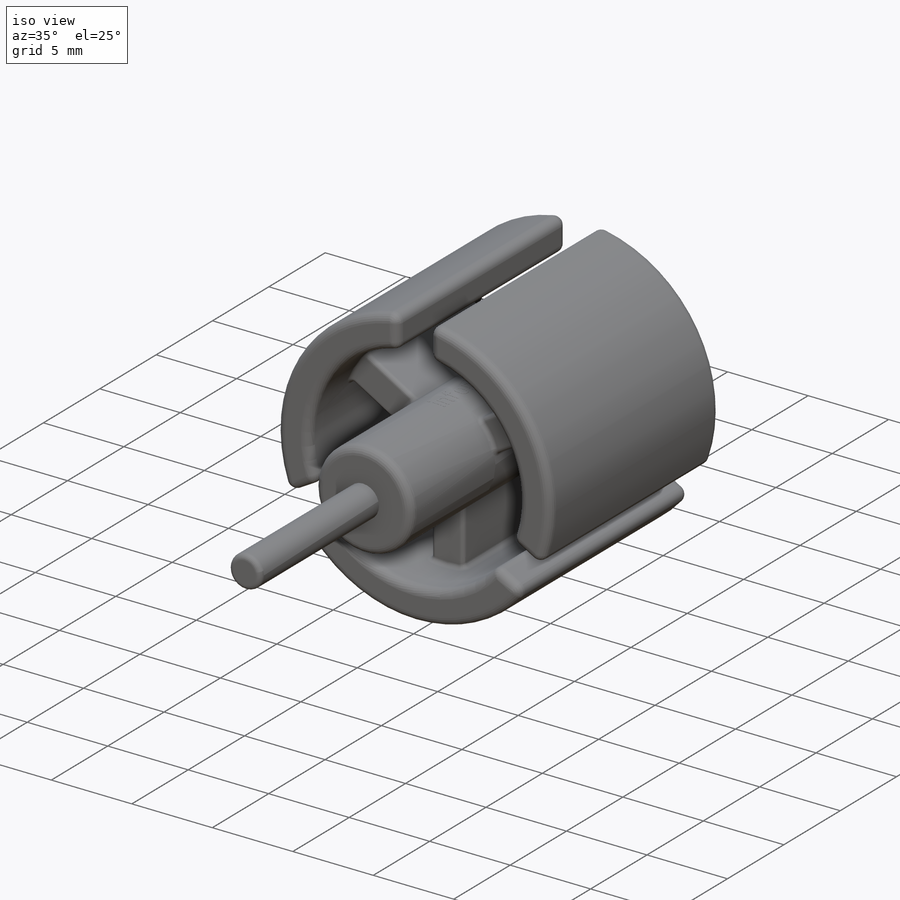
[diagram: iso view]
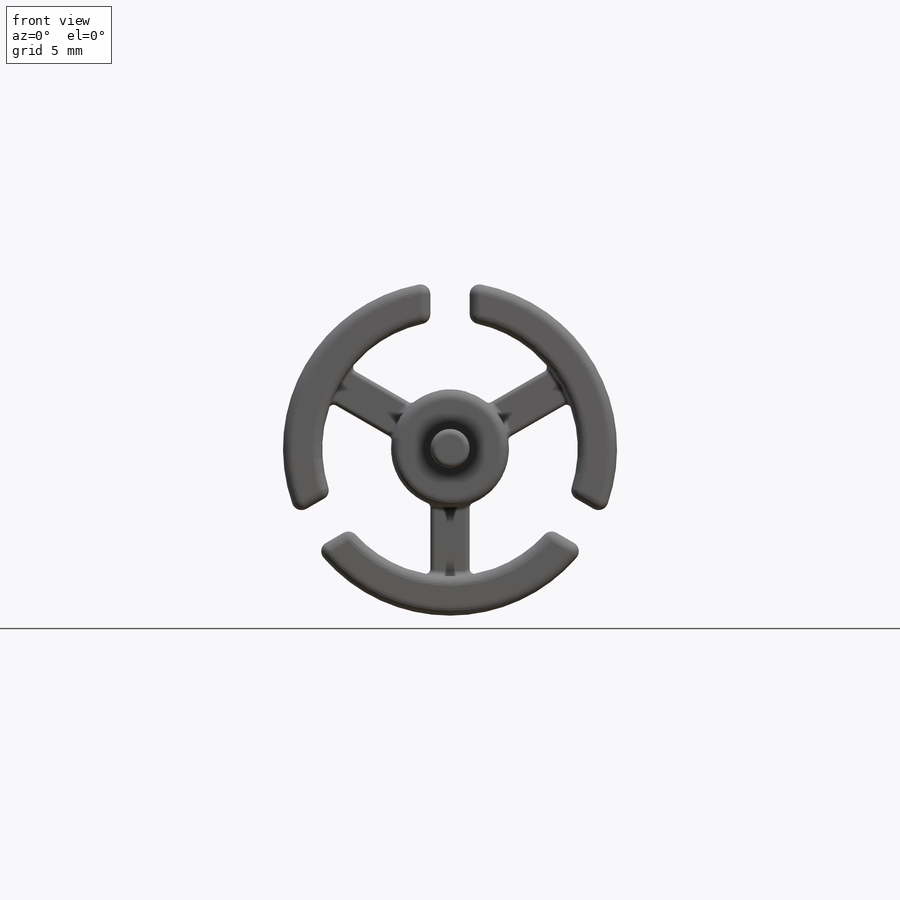
[diagram: front view]
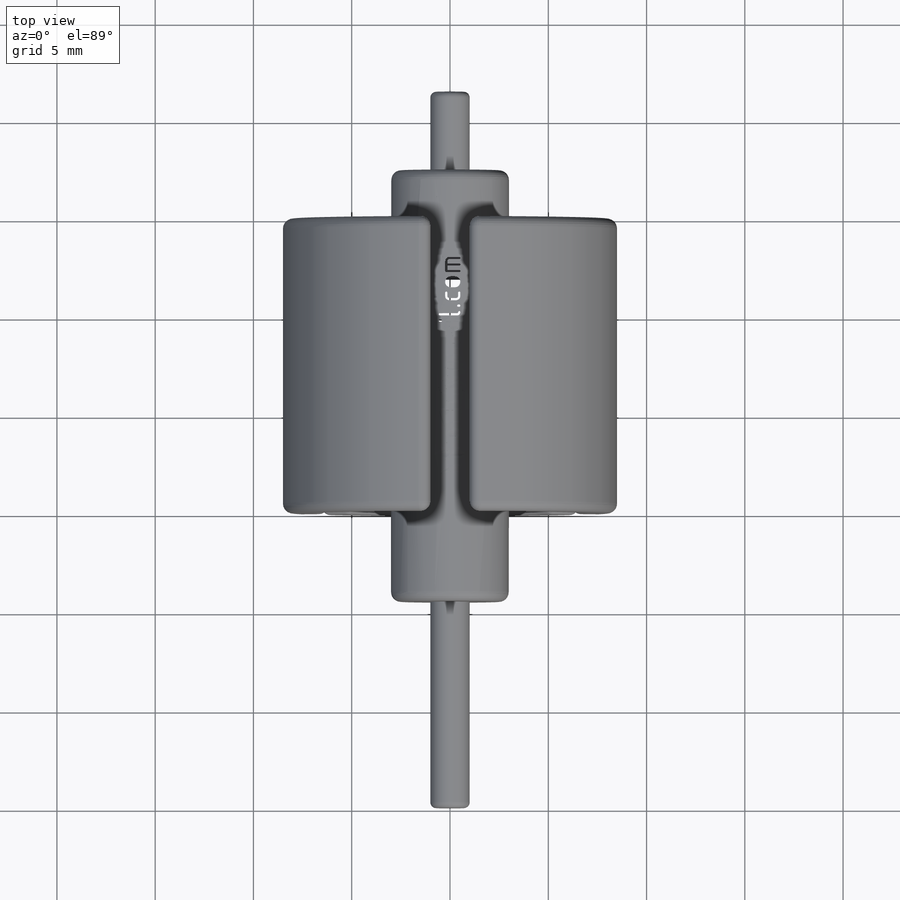
[diagram: top view]
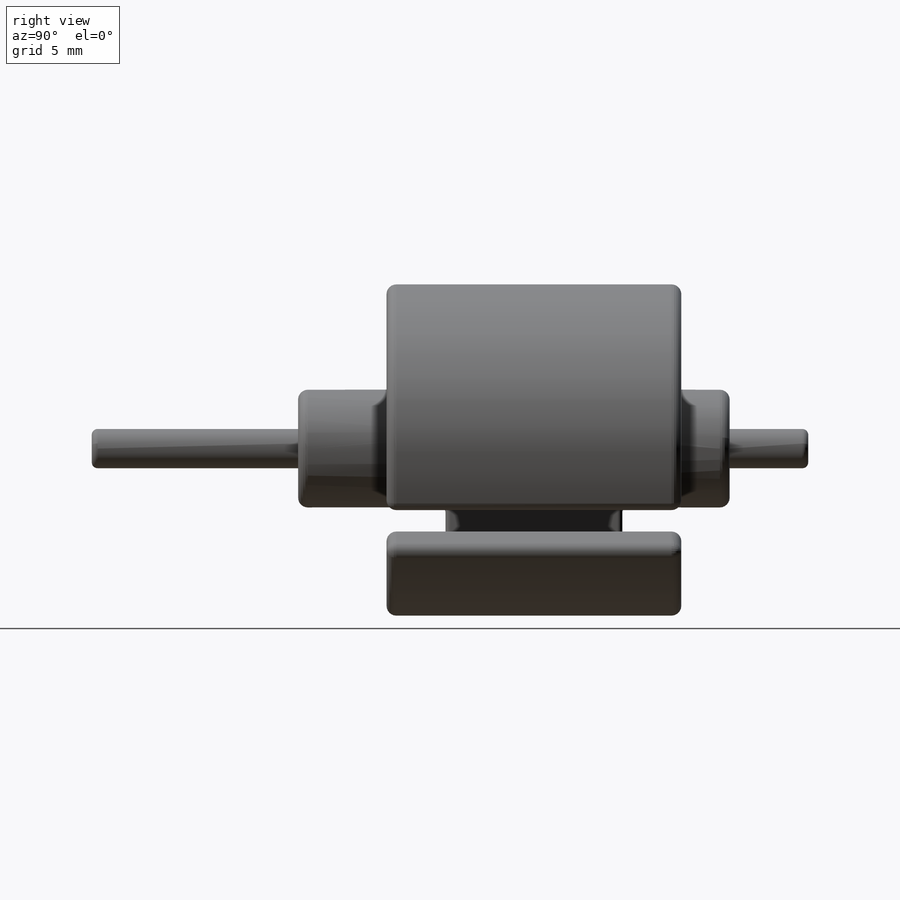
[diagram: right view]
SOLIDWORKS PART (.sldprt)
format: sldprt  version: not decoded by parser v0  size: 1,173,504 bytes
history: native  units: mm
features: sketch x5, plane x4, fillet x4, extrude x2, cut_extrude x2, material x1, revolve x1, pattern_circular x1, mirror x1 (+10 scaffold rows collapsed)
feature tree (31):
  scaffold x10  (default folders/planes/origin — collapsed)
  material  "AISI 1020"
  plane  "Frontal"
  plane  "Superior"
  plane  "Direito"
  sketch  "Sketch1"  dims[D1=2.0mm]
  extrude  "Extrude1"  Depth=36.46mm
  sketch  "Sketch2"  dims[D1=10.5mm D2=17.0mm D3=6.0mm D4=4.5mm D5=21.96mm D6=15.0mm D7=15.0mm]
  revolve  "Revolve1"  Angle=360deg
  fillet  "Fillet1"  Radius=0.5mm
  sketch  "Sketch3"  dims[c1.D5=22.0mm c1.D6=13.0mm c1.D1=~11.264026mm c2.D1=120.0deg c2.D2=5.0mm c3.D2=60.0deg c3.D3=1.5mm c3.D4=2.0mm c3.D7=2.0mm c3.D1=0.0mm]
  cut_extrude  "Cut-Extrude1"  [1 undecoded]
  pattern_circular  "CirPattern1"  Count=3 Angle=360deg
  plane  "Plane1"
  sketch  "Sketch4"
  cut_extrude  "Cut-Extrude2"  Depth=3mm
  mirror  "Mirror1"
  fillet  "Fillet2"  Radius=0.5mm
  fillet  "Fillet3"  Radius=0.25mm
  fillet  "Fillet7"  Radius=0.3mm
  sketch  "Sketch5"
  extrude  "Extrude2"  Depth=0.01mm
decode coverage: 12 of 16 modeling features carry decoded parameters
note: ~ marks probable driven/reference dimensions
note: 1 parameter value undecoded
note: suppression state not decoded; provenance and decode notes live in map.json
